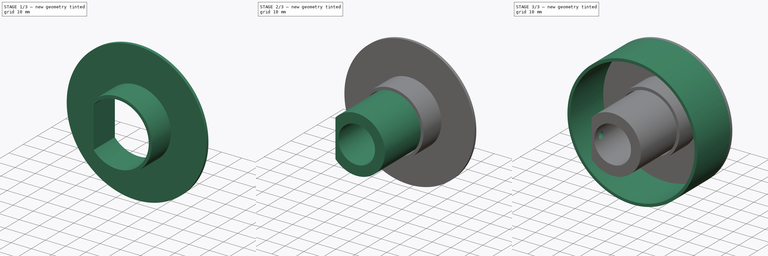
[diagram: build sequence overview — one tinted view per stage of 3, left to right]
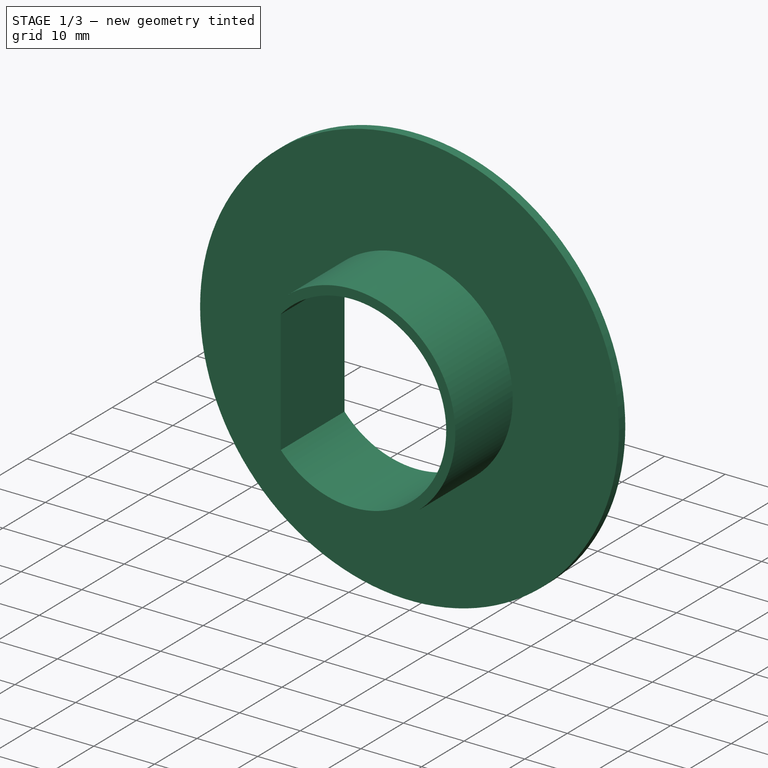
[diagram: stage 1 of 3 — iso view after this stage's code; geometry added in this stage tinted green]
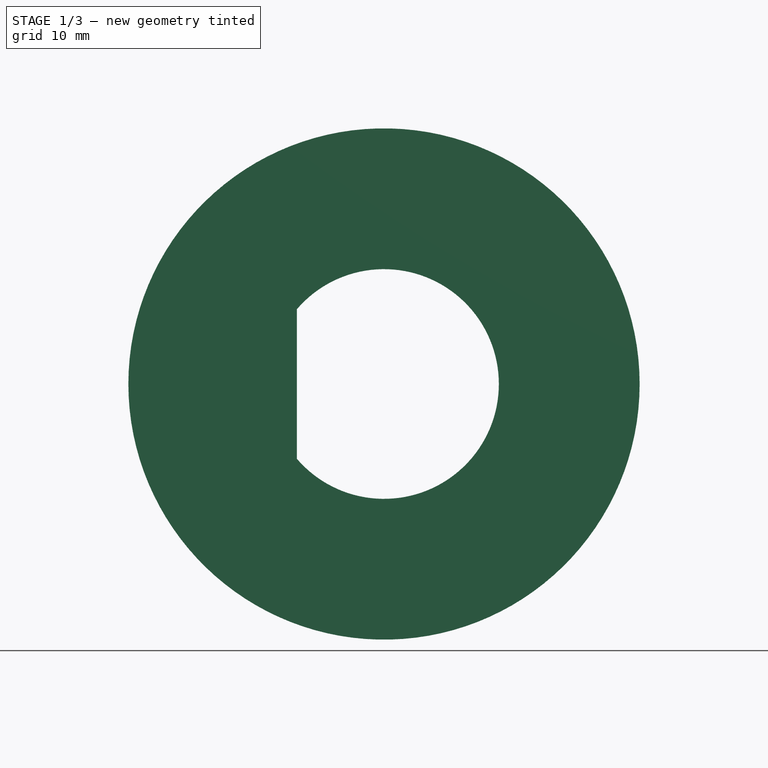
[diagram: stage 1 of 3 — front view after this stage's code; geometry added in this stage tinted green]
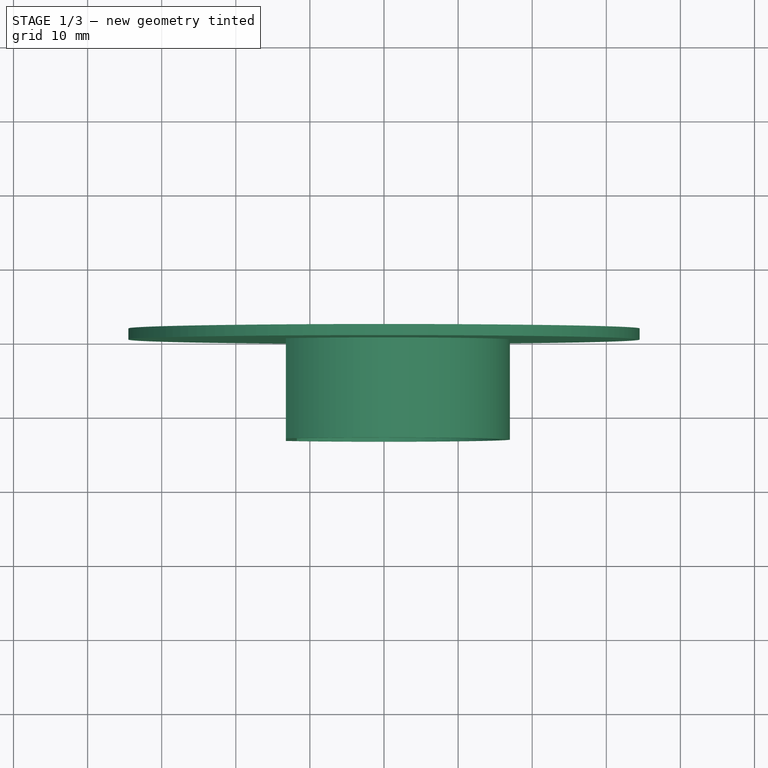
[diagram: stage 1 of 3 — top view after this stage's code; geometry added in this stage tinted green]
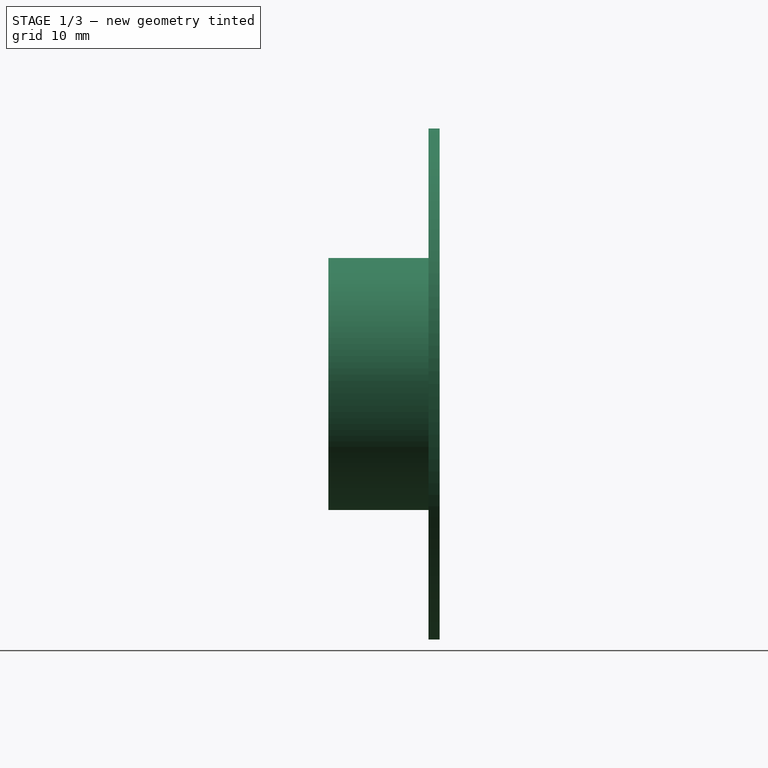
[diagram: stage 1 of 3 — right view after this stage's code; geometry added in this stage tinted green]
FCSTD DOCUMENT  (FreeCAD 0.20R29177 +233 (Git))
Label: magnetic_pickup_chassis
License: All rights reserved
LicenseURL: http://en.wikipedia.org/wiki/All_rights_reserved
objects: Sketcher::SketchObject×7, PartDesign::Pad×5, PartDesign::Pocket×2, PartDesign::Body×2, Spreadsheet::Sheet×1
note: 23 computed .brp shape members not serialized (recipe doc carries the construction recipe); baked Part::Feature solids carry a one-line shape summary decoded from their .brp

FEATURE [PartDesign::Body] Body
  Group = -> [Sketch,Pad,Sketch001,Pad001,Sketch002,Pad002,Sketch003,Pocket]
  Origin = -> Origin
  Tip = -> Pocket
FEATURE [Spreadsheet::Sheet] Spreadsheet
  cells = A1=wall thickness; B1(wall_thickness)=1.5; A2=mount hole diameter; B2(mount_hole_diam)=3.5; A3=pole diameter; B3(pole_diam)=19.5; A4=magnet inner diameter; B4(magnet_inner_diam)=30; A5=magnet outer diameter; B5(magnet_outer_diam)=66; A6=magnet height; B6(magnet_height)=25; A7=pole mount height; B7(pole_mount_height)=40
FEATURE [Sketcher::SketchObject] Sketch004
  FullyConstrained = true
  MapMode = 5
  Placement = pos=(0,0,0) rot=(1,0,0;1.5708rad)
  Support = -> [XZ_Plane001]
  expr: Constraints[16] = <<Spreadsheet>>.wall_thickness
  expr: Constraints[21] = <<Spreadsheet>>.magnet_inner_diam + 1 + <<Spreadsheet>>.wall_thickness * 2
  expr: Constraints[28] = <<Spreadsheet>>.wall_thickness
  expr: Constraints[2] = <<Spreadsheet>>.magnet_inner_diam + 1
  expr: Constraints[7] = <<Spreadsheet>>.pole_diam
  expr: Constraints[9] = <<Spreadsheet>>.magnet_inner_diam
  sketch-geometry (11):
    g0: Circle CenterX=0 CenterY=0 CenterZ=0 NormalX=0 NormalY=0 NormalZ=1 AngleXU=0 Radius=15.5
    g1: Circle CenterX=0 CenterY=0 CenterZ=0 NormalX=0 NormalY=0 NormalZ=1 AngleXU=0 Radius=17
    g2: LineSegment StartX=-11.75 StartY=10.1088 StartZ=0 EndX=-11.75 EndY=-10.1088 EndZ=0
    g3: Circle CenterX=0 CenterY=0 CenterZ=0 NormalX=0 NormalY=0 NormalZ=1 AngleXU=0 Radius=9.75
    g4: Circle CenterX=0 CenterY=0 CenterZ=0 NormalX=0 NormalY=0 NormalZ=1 AngleXU=0 Radius=15
    g5: LineSegment StartX=-11.25 StartY=9.92157 StartZ=0 EndX=-11.25 EndY=-9.92157 EndZ=0
    g6: LineSegment StartX=-11.25 StartY=0 StartZ=0 EndX=-9.75 EndY=0 EndZ=0
    g7: ArcOfCircle CenterX=0 CenterY=0 CenterZ=0 NormalX=0 NormalY=0 NormalZ=1 AngleXU=0 Radius=15.5 StartAngle=3.85205 EndAngle=8.71432
    g8: ArcOfCircle CenterX=0 CenterY=0 CenterZ=0 NormalX=0 NormalY=0 NormalZ=1 AngleXU=0 Radius=17 StartAngle=3.81866 EndAngle=8.74771
    g9: LineSegment StartX=-13.25 StartY=10.6507 StartZ=0 EndX=-13.25 EndY=-10.6507 EndZ=0
    g10: LineSegment StartX=-13.25 StartY=0 StartZ=0 EndX=-11.75 EndY=0 EndZ=0
  constraints (32):
    c: Coincident(g0,g-1)
    c: Coincident(g1,g0)
    c: Diameter(g0) = 31
    c: PointOnObject(g2,g0)
    c: Vertical(g2)
    c: PointOnObject(g2,g0)
    c: Coincident(g3,g0)
    c: Diameter(g3) = 19.5
    c: Coincident(g4,g0)
    c: Diameter(g4) = 30
    c: PointOnObject(g5,g4)
    c: PointOnObject(g5,g4)
    c: Vertical(g5)
    c: PointOnObject(g6,g5)
    c: PointOnObject(g6,g3)
    c: Tangent(g6,g-1)
    c: DistanceX(g6,g6) = 1.5
    c: Coincident(g7,g0)
    c: Coincident(g7,g2)
    c: PointOnObject(g7,g2)
    c: DistanceX(g2,g5) = 0.5
    c: Diameter(g1) = 34
    c: Coincident(g8,g7)
    c: PointOnObject(g9,g1)
    c: PointOnObject(g9,g1)
    c: Vertical(g9)
    c: PointOnObject(g10,g9)
    c: PointOnObject(g10,g2)
    c: DistanceX(g10,g10) = 1.5
    c: Tangent(g10,g-1)
    c: Coincident(g8,g9)
    c: PointOnObject(g8,g9)
FEATURE [PartDesign::Pad] Pad003
  Direction = (0,-1,-2e-16)
  Length = 13.5
  Length2 = 10
  Placement = pos=(0,0,0) rot=(1,0,0;1.5708rad)
  Profile = -> Sketch004
  ReferenceAxis = -> Sketch004 [N_Axis]
  Type = 0
  expr: Length = <<Spreadsheet>>.pole_mount_height - <<Spreadsheet>>.magnet_height - <<Spreadsheet>>.wall_thickness
FEATURE [Sketcher::SketchObject] Sketch005
  ExternalGeometry = -> [Pad003]
  FullyConstrained = true
  MapMode = 5
  Placement = pos=(0,0,0) rot=(-1,0,0;1.5708rad)
  Support = -> [Pad003]
  expr: Constraints[1] = <<Spreadsheet>>.magnet_outer_diam + <<Spreadsheet>>.wall_thickness * 2
  sketch-geometry (3):
    g0: Circle CenterX=0 CenterY=0 CenterZ=0 NormalX=0 NormalY=0 NormalZ=1 AngleXU=0 Radius=34.5
    g1: LineSegment StartX=-11.75 StartY=10.1088 StartZ=0 EndX=-11.75 EndY=-10.1088 EndZ=0
    g2: ArcOfCircle CenterX=0 CenterY=0 CenterZ=0 NormalX=0 NormalY=0 NormalZ=1 AngleXU=0 Radius=15.5 StartAngle=3.85205 EndAngle=8.71432
  constraints (7):
    c: Coincident(g0,g-1)
    c: Diameter(g0) = 69
    c: Coincident(g1,g-4)
    c: Coincident(g1,g-4)
    c: Coincident(g2,g0)
    c: Coincident(g2,g1)
    c: PointOnObject(g2,g1)
FEATURE [PartDesign::Pad] Pad004
  BaseFeature = -> Pad003
  Direction = (0,1,2e-16)
  Length = 1.5
  Length2 = 10
  Placement = pos=(0,0,0) rot=(1,0,0;1.5708rad)
  Profile = -> Sketch005
  ReferenceAxis = -> Sketch005 [N_Axis]
  Type = 0
  expr: Length = <<Spreadsheet>>.wall_thickness
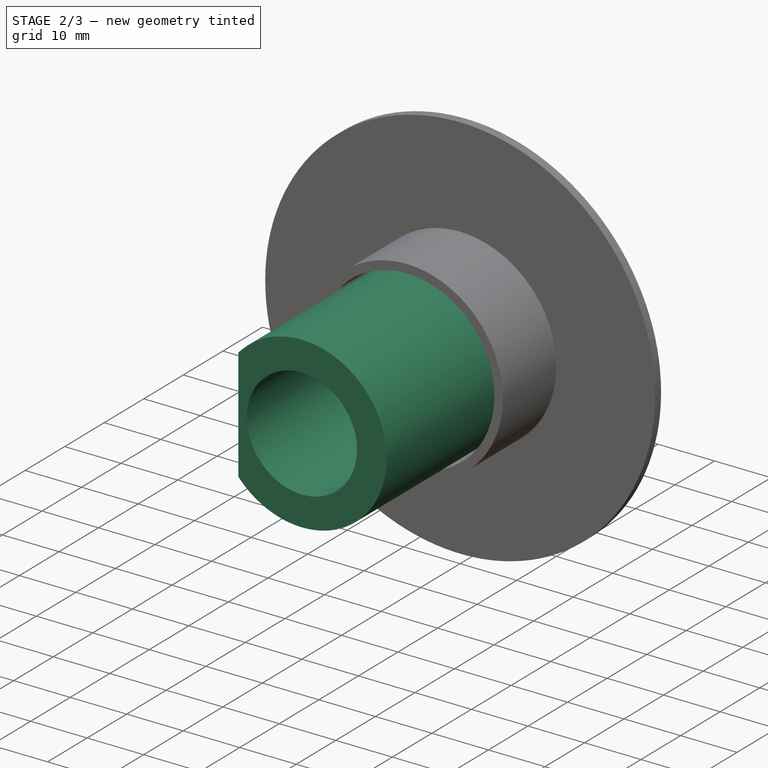
[diagram: stage 2 of 3 — iso view after this stage's code; geometry added in this stage tinted green]
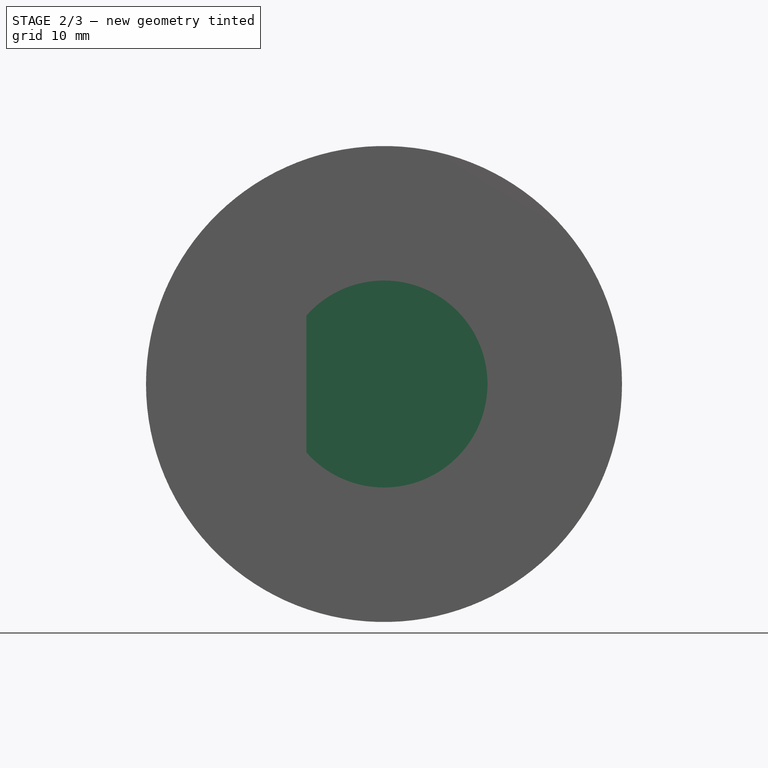
[diagram: stage 2 of 3 — front view after this stage's code; geometry added in this stage tinted green]
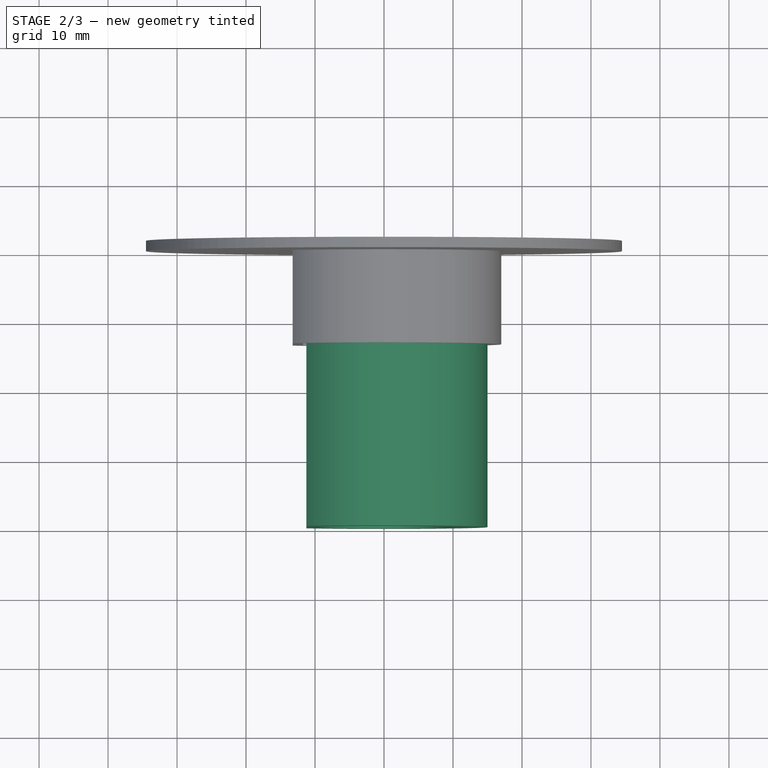
[diagram: stage 2 of 3 — top view after this stage's code; geometry added in this stage tinted green]
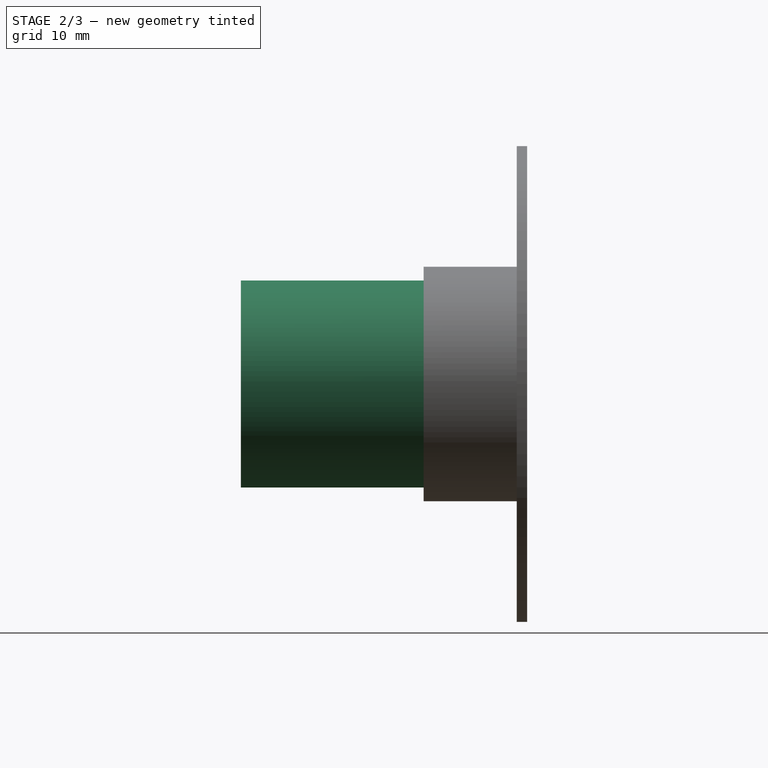
[diagram: stage 2 of 3 — right view after this stage's code; geometry added in this stage tinted green]
FEATURE [Sketcher::SketchObject] Sketch
  FullyConstrained = true
  MapMode = 5
  Placement = pos=(0,0,0) rot=(1,0,0;1.5708rad)
  Support = -> [XZ_Plane]
  expr: Constraints[10] = Spreadsheet.wall_thickness
  expr: Constraints[1] = <<Spreadsheet>>.pole_diam
  expr: Constraints[3] = <<Spreadsheet>>.magnet_inner_diam
  sketch-geometry (5):
    g0: Circle CenterX=0 CenterY=0 CenterZ=0 NormalX=0 NormalY=0 NormalZ=1 AngleXU=0 Radius=9.75
    g1: Circle CenterX=0 CenterY=0 CenterZ=0 NormalX=0 NormalY=0 NormalZ=1 AngleXU=0 Radius=15
    g2: LineSegment StartX=-11.25 StartY=9.92157 StartZ=0 EndX=-11.25 EndY=-9.92157 EndZ=0
    g3: LineSegment StartX=-11.25 StartY=0 StartZ=0 EndX=-9.75 EndY=0 EndZ=0
    g4: ArcOfCircle CenterX=0 CenterY=0 CenterZ=0 NormalX=0 NormalY=0 NormalZ=1 AngleXU=0 Radius=15 StartAngle=3.86433 EndAngle=8.70204
  constraints (14):
    c: Coincident(g0,g-1)
    c: Diameter(g0) = 19.5
    c: Coincident(g1,g0)
    c: Diameter(g1) = 30
    c: Vertical(g2)
    c: PointOnObject(g2,g1)
    c: PointOnObject(g2,g1)
    c: PointOnObject(g3,g2)
    c: PointOnObject(g3,g0)
    c: Tangent(g3,g-1)
    c: DistanceX(g3,g3) = 1.5
    c: Coincident(g4,g0)
    c: Coincident(g4,g2)
    c: PointOnObject(g4,g2)
FEATURE [PartDesign::Pad] Pad
  Direction = (0,-1,-2e-16)
  Length = 40
  Length2 = 10
  Placement = pos=(0,0,0) rot=(1,0,0;1.5708rad)
  Profile = -> Sketch
  ReferenceAxis = -> Sketch [N_Axis]
  Type = 0
  expr: Length = <<Spreadsheet>>.pole_mount_height
FEATURE [Sketcher::SketchObject] Sketch001
  FullyConstrained = true
  MapMode = 5
  Placement = pos=(0,0,0) rot=(-1,0,0;1.5708rad)
  Support = -> [Pad]
  expr: Constraints[2] = <<Spreadsheet>>.magnet_outer_diam
  expr: Constraints[6] = <<Spreadsheet>>.wall_thickness
  sketch-geometry (3):
    g0: Circle CenterX=0 CenterY=0 CenterZ=0 NormalX=0 NormalY=0 NormalZ=1 AngleXU=0 Radius=33
    g1: Circle CenterX=0 CenterY=0 CenterZ=0 NormalX=0 NormalY=0 NormalZ=1 AngleXU=0 Radius=34.5
    g2: LineSegment StartX=33 StartY=0 StartZ=0 EndX=34.5 EndY=0 EndZ=0
  constraints (7):
    c: Coincident(g0,g-1)
    c: Coincident(g1,g0)
    c: Diameter(g0) = 66
    c: PointOnObject(g2,g0)
    c: PointOnObject(g2,g1)
    c: Tangent(g2,g-1)
    c: DistanceX(g2,g2) = 1.5
FEATURE [PartDesign::Pad] Pad001
  BaseFeature = -> Pad
  Direction = (0,1,2e-16)
  Length = 1.5
  Length2 = 10
  Placement = pos=(0,0,0) rot=(1,0,0;1.5708rad)
  Profile = -> Sketch001
  ReferenceAxis = -> Sketch001 [N_Axis]
  Type = 0
FEATURE [Sketcher::SketchObject] Sketch006
  ExternalGeometry = -> [Pad004]
  FullyConstrained = true
  MapMode = 5
  Placement = pos=(-11.75,0,0) rot=(0.707107,0,0.707107;3.14159rad)
  Support = -> [Pad004]
  expr: Constraints[1] = <<Spreadsheet>>.mount_hole_diam
  sketch-geometry (2):
    g0: Circle CenterX=0 CenterY=8.5 CenterZ=0 NormalX=0 NormalY=0 NormalZ=1 AngleXU=0 Radius=1.75
    g1: LineSegment StartX=0 StartY=8.5 StartZ=0 EndX=0 EndY=13.5 EndZ=0
  constraints (6):
    c: PointOnObject(g0,g-2)
    c: Diameter(g0) = 3.5
    c: Coincident(g1,g0)
    c: PointOnObject(g1,g-2)
    c: DistanceY(g1,g1) = 5
    c: PointOnObject(g1,g-3)
FEATURE [PartDesign::Pocket] Pocket001
  BaseFeature = -> Pad004
  Direction = (-1,0,2e-16)
  Length = 5
  Length2 = 5
  Placement = pos=(0,0,0) rot=(1,0,0;1.5708rad)
  Profile = -> Sketch006
  ReferenceAxis = -> Sketch006 [N_Axis]
  Type = 2
FEATURE [PartDesign::Body] Body001
  Group = -> [Sketch004,Pad003,Sketch005,Pad004,Sketch006,Pocket001]
  Origin = -> Origin001
  Tip = -> Pocket001
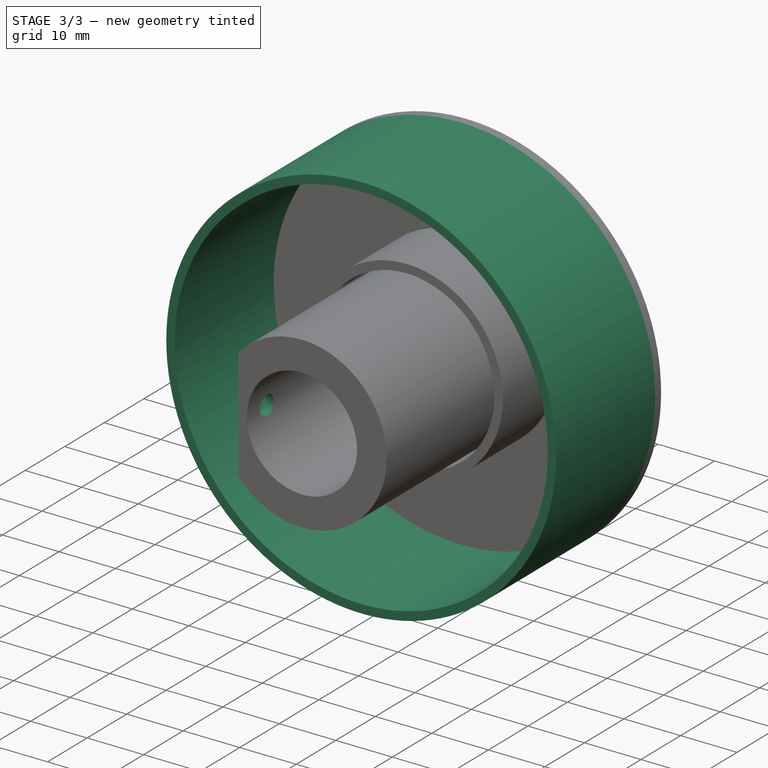
[diagram: stage 3 of 3 — iso view after this stage's code; geometry added in this stage tinted green]
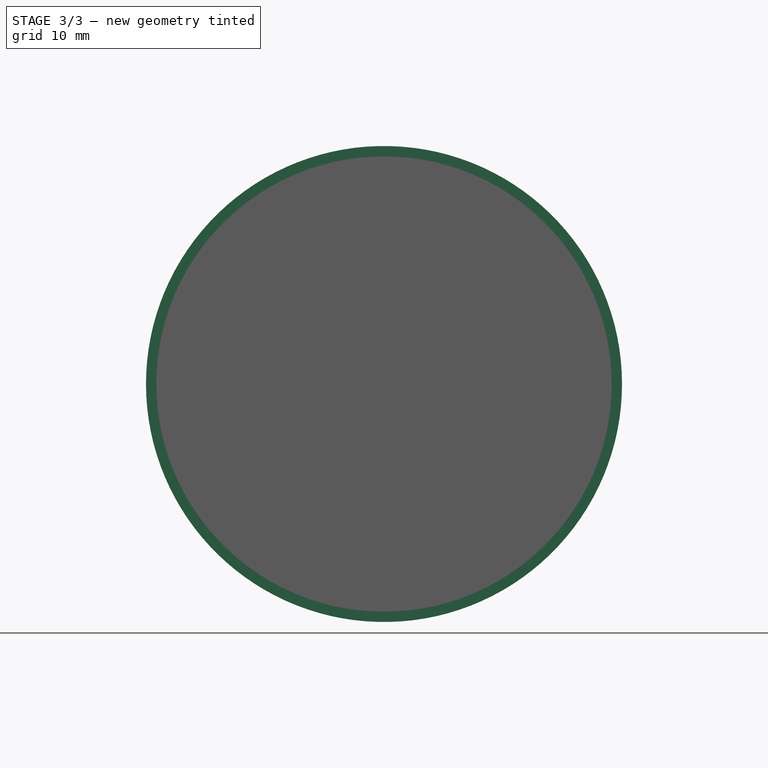
[diagram: stage 3 of 3 — front view after this stage's code; geometry added in this stage tinted green]
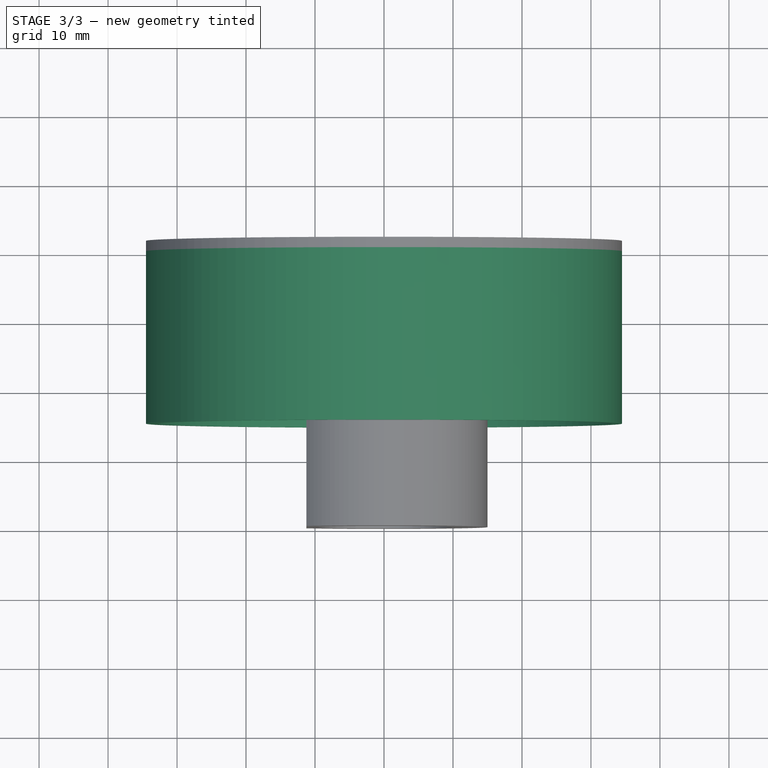
[diagram: stage 3 of 3 — top view after this stage's code; geometry added in this stage tinted green]
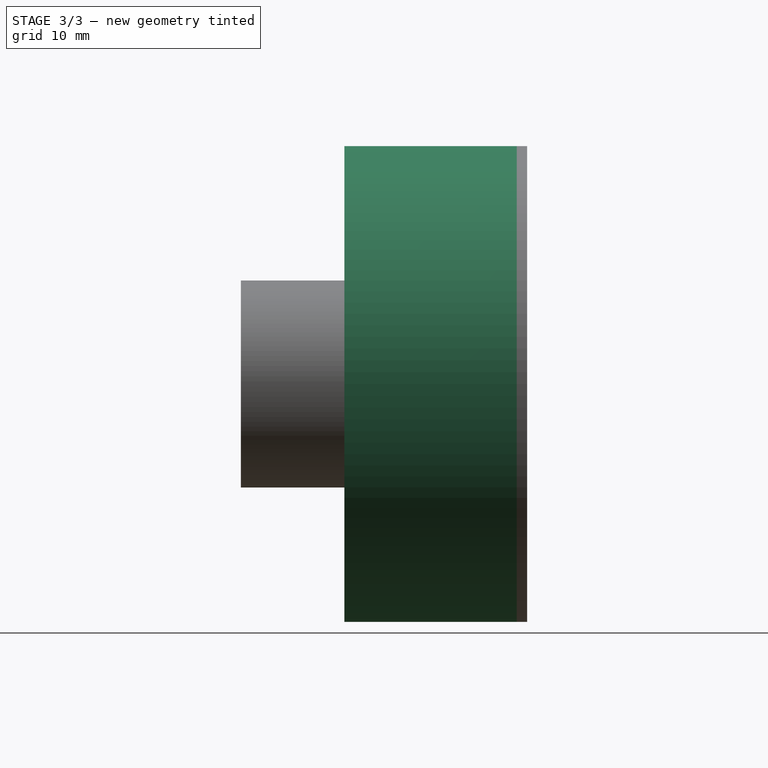
[diagram: stage 3 of 3 — right view after this stage's code; geometry added in this stage tinted green]
FEATURE [Sketcher::SketchObject] Sketch002
  ExternalGeometry = -> [Pad001]
  FullyConstrained = true
  MapMode = 5
  Placement = pos=(0,0,0) rot=(1,0,0;1.5708rad)
  Support = -> [Pad001]
  expr: Constraints[5] = <<Spreadsheet>>.wall_thickness
  sketch-geometry (3):
    g0: Circle CenterX=9e-16 CenterY=0 CenterZ=0 NormalX=0 NormalY=0 NormalZ=1 AngleXU=0 Radius=34.5
    g1: Circle CenterX=9e-16 CenterY=0 CenterZ=0 NormalX=0 NormalY=0 NormalZ=1 AngleXU=0 Radius=33
    g2: LineSegment StartX=33 StartY=0 StartZ=0 EndX=34.5 EndY=0 EndZ=0
  constraints (7):
    c: Coincident(g0,g-1)
    c: Coincident(g1,g0)
    c: PointOnObject(g2,g1)
    c: PointOnObject(g2,g0)
    c: Tangent(g2,g-1)
    c: DistanceX(g2,g2) = 1.5
    c: Equal(g0,g-3)
FEATURE [PartDesign::Pad] Pad002
  BaseFeature = -> Pad001
  Direction = (0,-1,-2e-16)
  Length = 25
  Length2 = 10
  Placement = pos=(0,0,0) rot=(1,0,0;1.5708rad)
  Profile = -> Sketch002
  ReferenceAxis = -> Sketch002 [N_Axis]
  Type = 0
  expr: Length = <<Spreadsheet>>.magnet_height
FEATURE [Sketcher::SketchObject] Sketch003
  ExternalGeometry = -> [Pad002]
  FullyConstrained = true
  MapMode = 5
  Placement = pos=(-11.25,0,0) rot=(0.707107,0,-0.707107;3.14159rad)
  Support = -> [Pad002]
  sketch-geometry (2):
    g0: Circle CenterX=0 CenterY=35 CenterZ=0 NormalX=0 NormalY=0 NormalZ=1 AngleXU=0 Radius=1.75
    g1: LineSegment StartX=0 StartY=35 StartZ=0 EndX=0 EndY=40 EndZ=0
  constraints (6):
    c: PointOnObject(g0,g-2)
    c: Diameter(g0) = 3.5
    c: Coincident(g1,g0)
    c: PointOnObject(g1,g-3)
    c: Vertical(g1)
    c: DistanceY(g1,g1) = 5
FEATURE [PartDesign::Pocket] Pocket
  BaseFeature = -> Pad002
  Direction = (1,0,2e-16)
  Length = 3
  Length2 = 5
  Placement = pos=(0,0,0) rot=(1,0,0;1.5708rad)
  Profile = -> Sketch003
  ReferenceAxis = -> Sketch003 [N_Axis]
  Type = 2
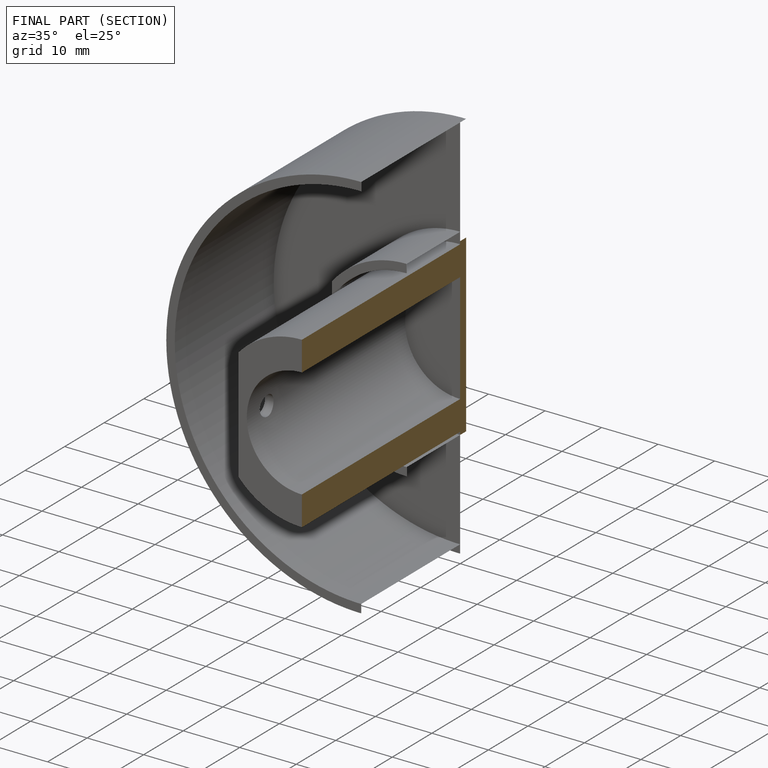
[diagram: finished part — half-section view (interior)]
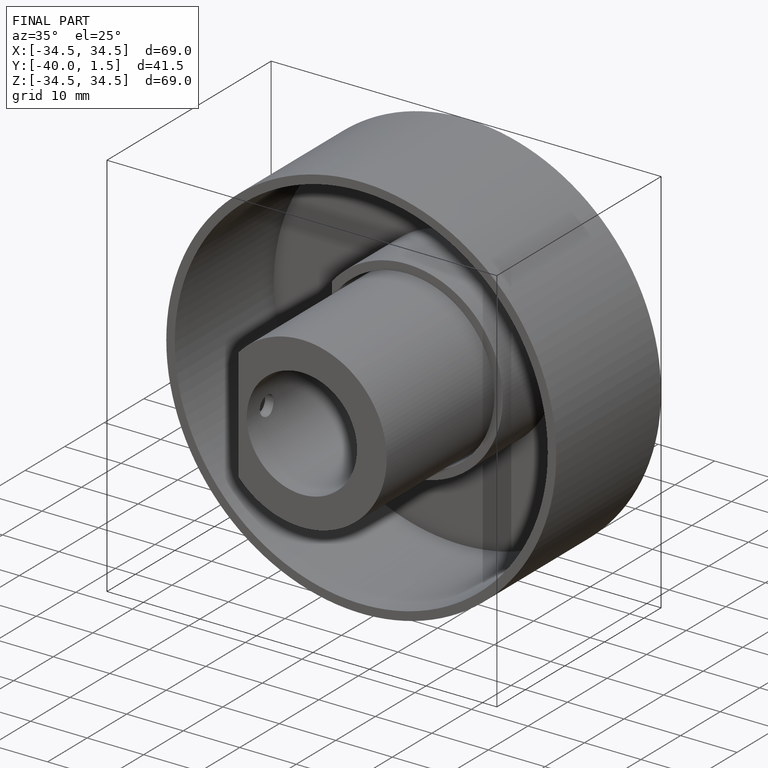
[diagram: finished part — iso view with bounding-box wireframe]
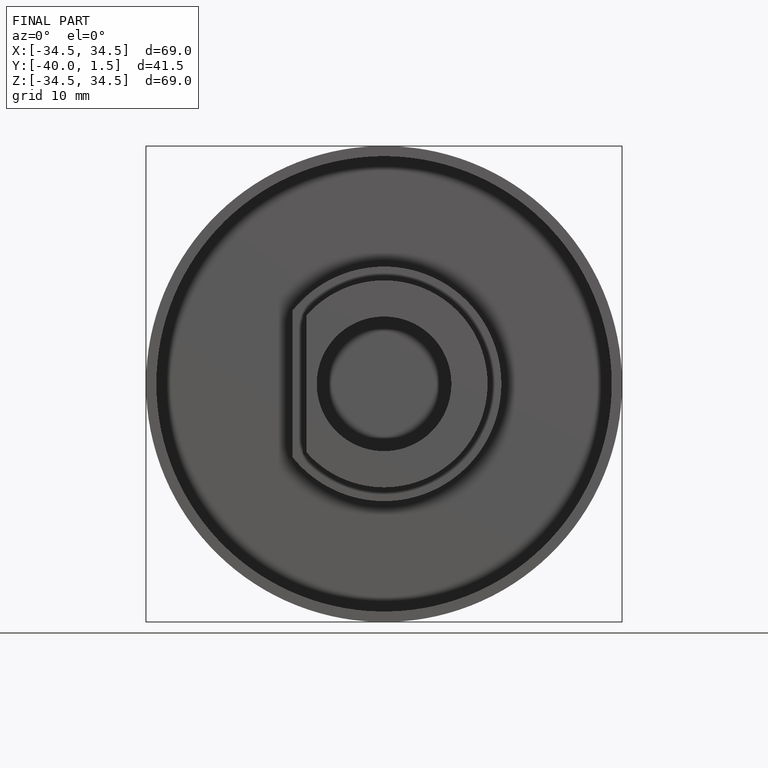
[diagram: finished part — front view with bounding-box wireframe]
